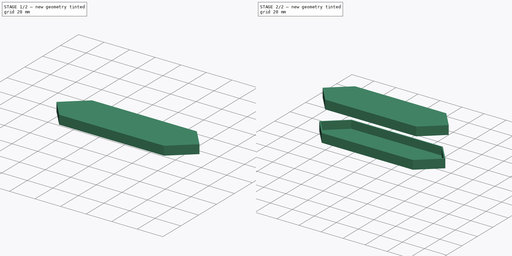
[diagram: build sequence overview — one tinted view per stage of 2, left to right]
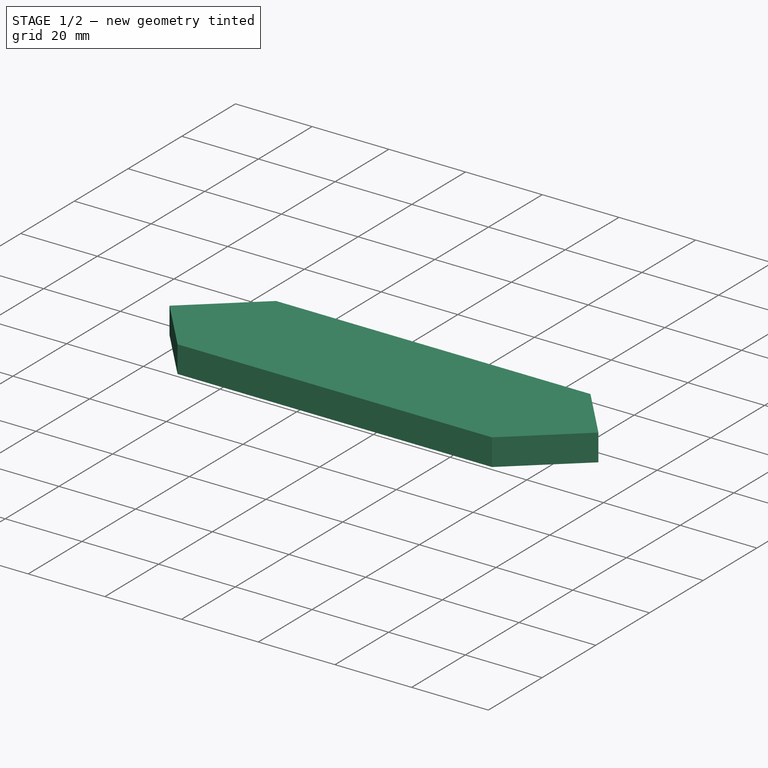
[diagram: stage 1 of 2 — iso view after this stage's code; geometry added in this stage tinted green]
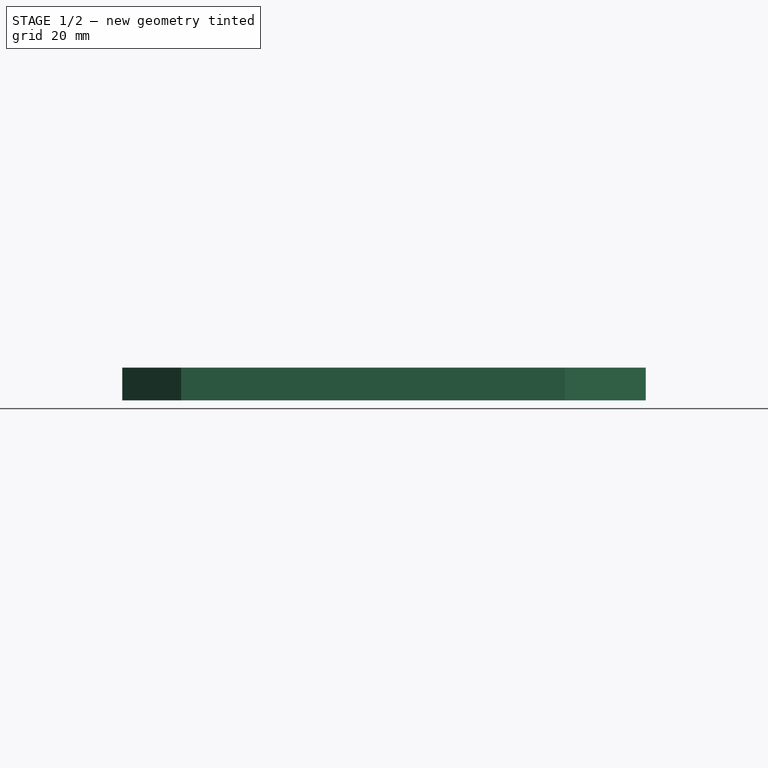
[diagram: stage 1 of 2 — front view after this stage's code; geometry added in this stage tinted green]
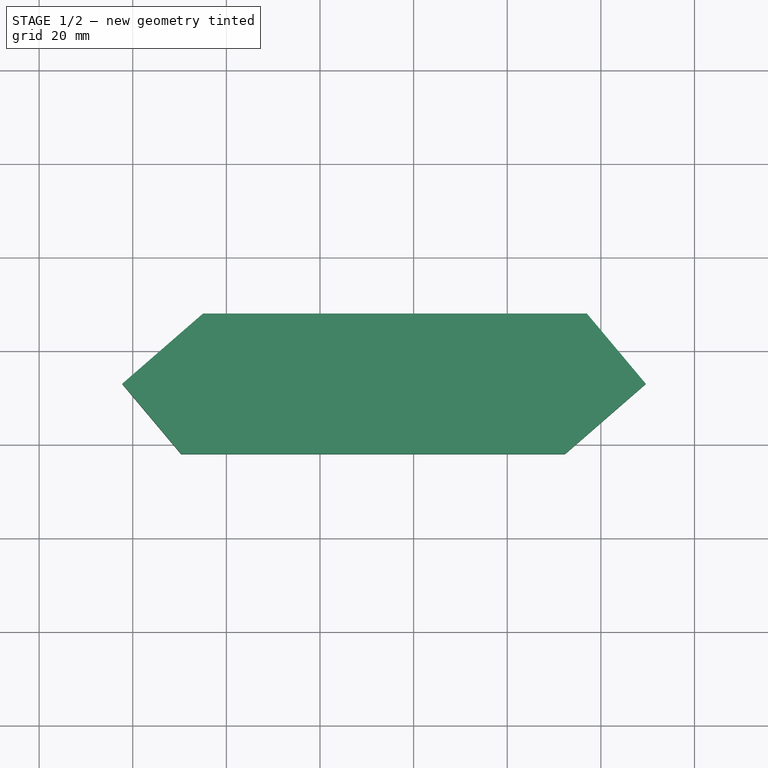
[diagram: stage 1 of 2 — top view after this stage's code; geometry added in this stage tinted green]
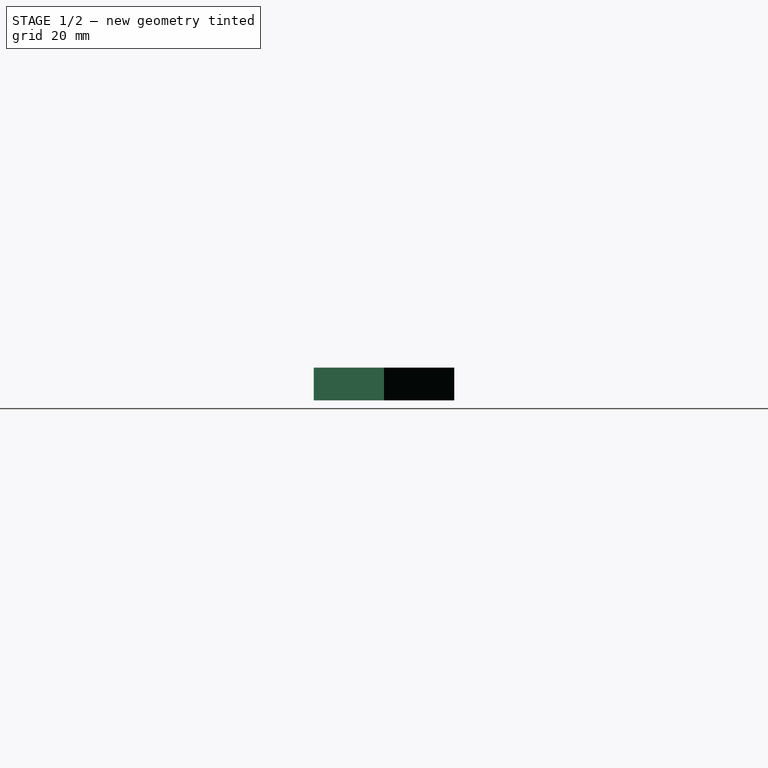
[diagram: stage 1 of 2 — right view after this stage's code; geometry added in this stage tinted green]
FCSTD DOCUMENT  (FreeCAD 0.18R16131 (Git))
Label: afficheurSegment
License: All rights reserved
LicenseURL: http://en.wikipedia.org/wiki/All_rights_reserved
objects: PartDesign::Body×2, Part::Thickness×2, Sketcher::SketchObject×1, PartDesign::Pad×1, PartDesign::FeatureBase×1
note: 8 computed .brp shape members not serialized (recipe doc carries the construction recipe); baked Part::Feature solids carry a one-line shape summary decoded from their .brp

FEATURE [Sketcher::SketchObject] Sketch
  MapMode = 5
  Support = -> [XY_Plane]
  sketch-geometry (6):
    g0: LineSegment StartX=-58.2555 StartY=0 StartZ=0 EndX=-45.669 EndY=-15 EndZ=0
    g1: LineSegment StartX=-45.669 StartY=-15 StartZ=0 EndX=36.331 EndY=-15 EndZ=0
    g2: LineSegment StartX=36.331 StartY=-15 StartZ=0 EndX=53.5865 EndY=1.8e-15 EndZ=0
    g3: LineSegment StartX=53.5865 StartY=1.8e-15 StartZ=0 EndX=41 EndY=15 EndZ=0
    g4: LineSegment StartX=41 StartY=15 StartZ=0 EndX=-41 EndY=15 EndZ=0
    g5: LineSegment StartX=-41 StartY=15 StartZ=0 EndX=-58.2555 EndY=1.8e-15 EndZ=0
  constraints (17):
    c: Coincident(g0,g1)
    c: Horizontal(g1)
    c: Coincident(g1,g2)
    c: PointOnObject(g2,g-1)
    c: Coincident(g2,g3)
    c: Coincident(g3,g4)
    c: Coincident(g4,g5)
    c: Coincident(g5,g0)
    c: DistanceX(g4,g4) = 82
    c: DistanceY(g1,g3) = 30
    c: Symmetric(g4,g3,g-2)
    c: Angle(g5,g4) = 2.42601
    c: Angle(g4,g3) = 2.26893
    c: Equal(g1,g4)
    c: PointOnObject(g0,g-1)
    c: Angle(g1,g0) = 2.26893
    c: Angle(g2,g1) = 2.42601
FEATURE [PartDesign::Pad] Pad
  Length = 7
  Length2 = 100
  Profile = -> Sketch
  Type = 0
FEATURE [PartDesign::FeatureBase] Clone
  BaseFeature = -> Pad
  Placement = pos=(36,-47,54) rot=(0,0,1;0rad)
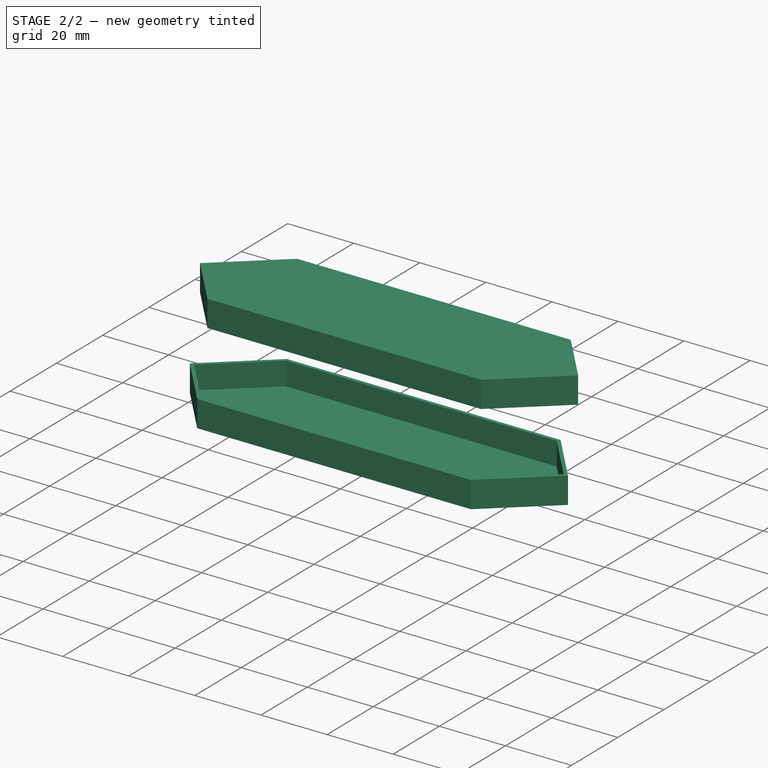
[diagram: stage 2 of 2 — iso view after this stage's code; geometry added in this stage tinted green]
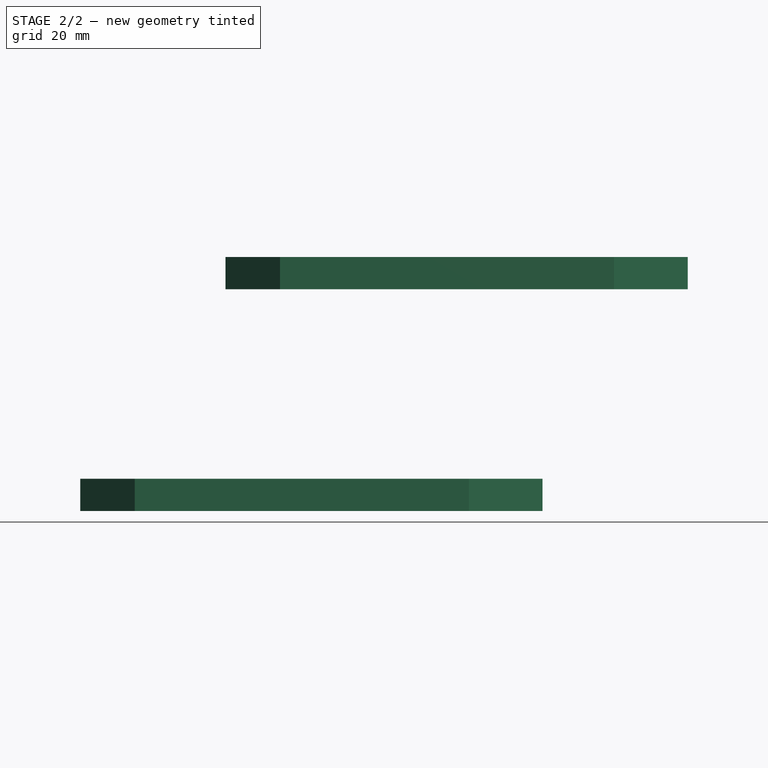
[diagram: stage 2 of 2 — front view after this stage's code; geometry added in this stage tinted green]
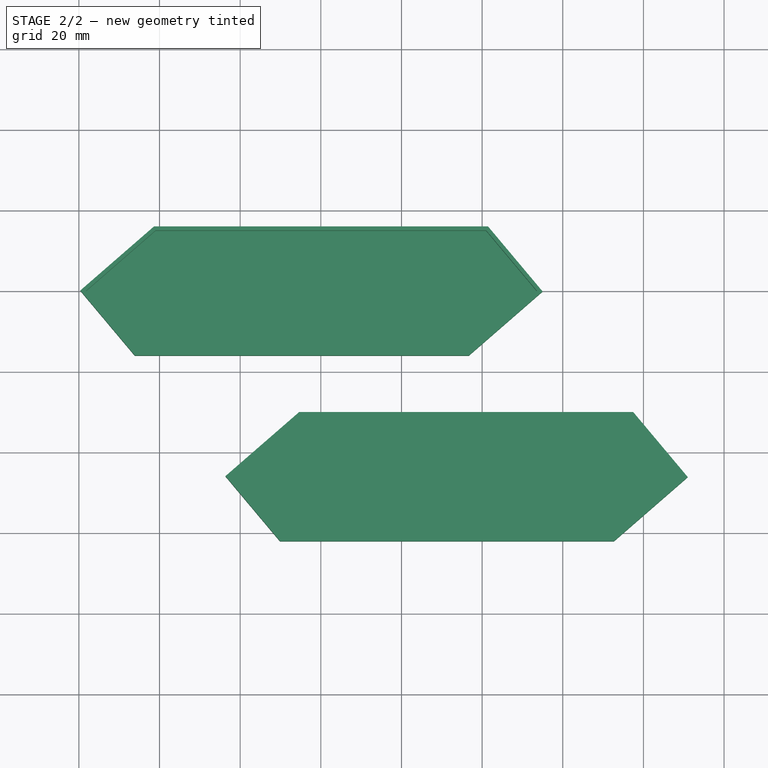
[diagram: stage 2 of 2 — top view after this stage's code; geometry added in this stage tinted green]
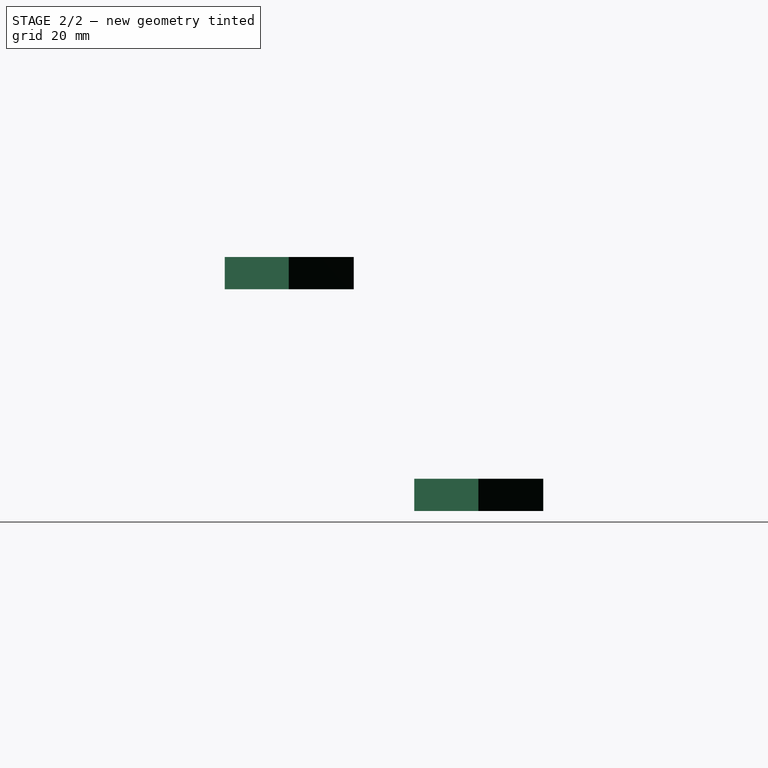
[diagram: stage 2 of 2 — right view after this stage's code; geometry added in this stage tinted green]
FEATURE [PartDesign::Body] Body
  Group = -> [Sketch,Pad]
  Origin = -> Origin
  Tip = -> Pad
FEATURE [Part::Thickness] Thickness
  Faces = -> Pad [Face8]
  Intersection = false
  Join = 2
  Mode = 0
  SelfIntersection = false
  Value = 1
FEATURE [PartDesign::Body] Body001
  Group = -> [Clone]
  Origin = -> Origin001
  Tip = -> Clone
FEATURE [Part::Thickness] Thickness001
  Faces = -> Clone [Face7]
  Intersection = false
  Join = 2
  Mode = 0
  SelfIntersection = false
  Value = 1
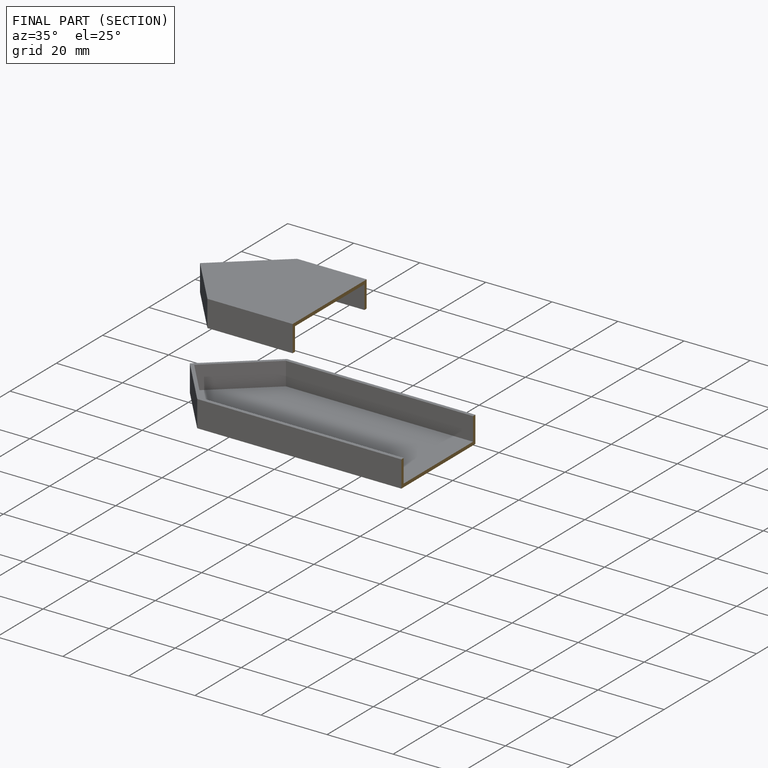
[diagram: finished part — half-section view (interior)]
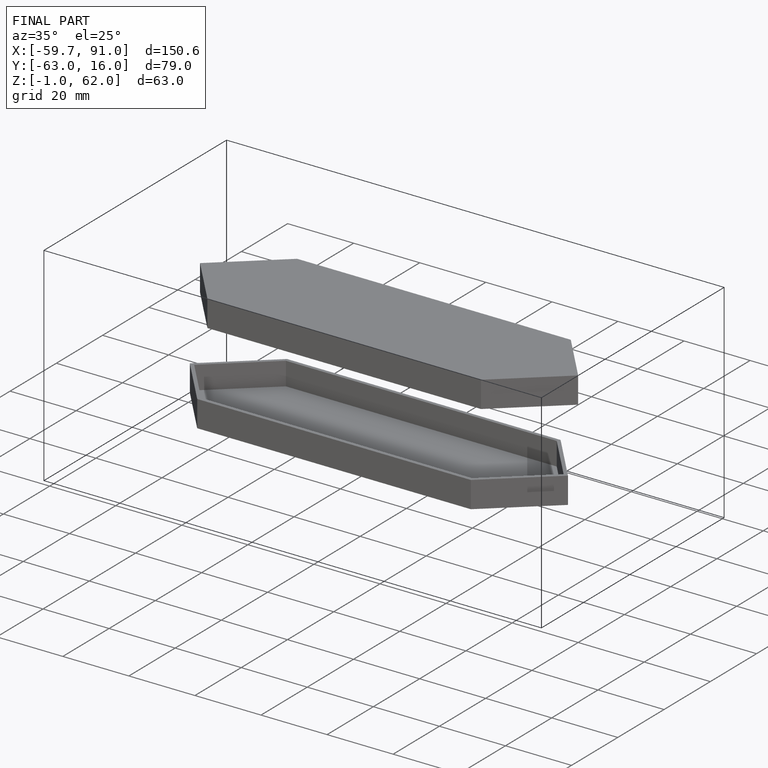
[diagram: finished part — iso view with bounding-box wireframe]
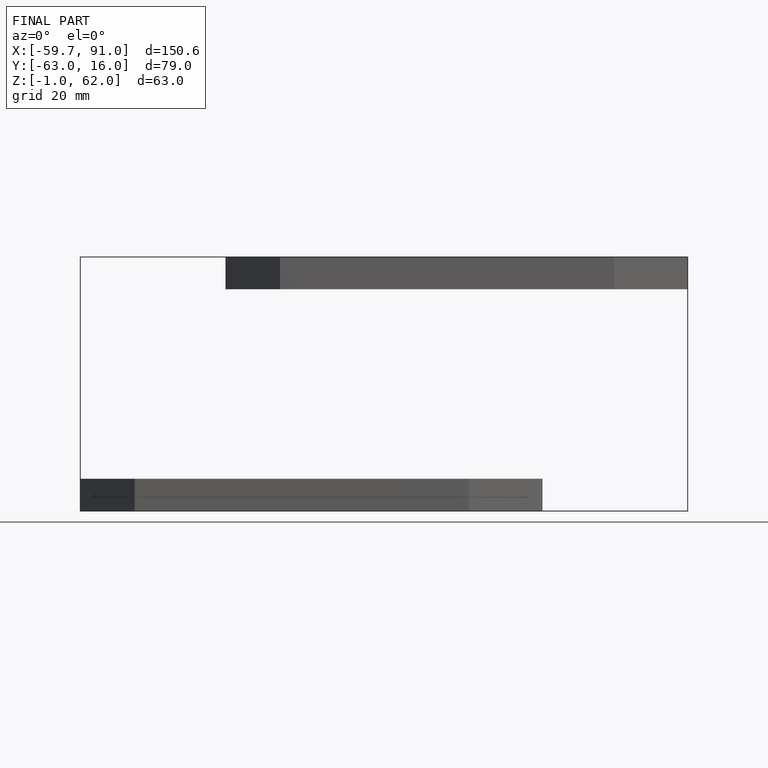
[diagram: finished part — front view with bounding-box wireframe]
